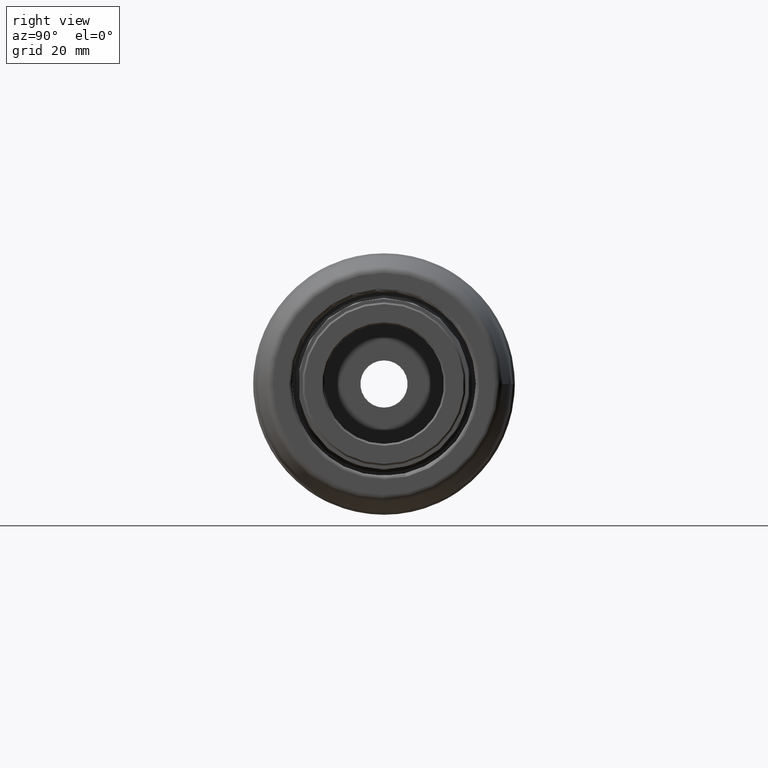
[diagram: clean part render]
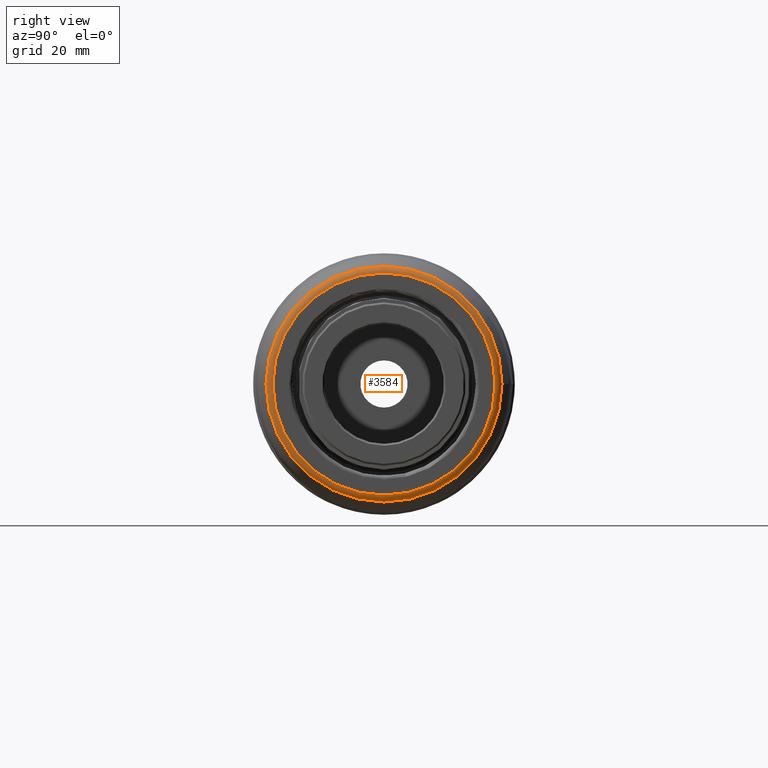
[diagram: same view with one face highlighted and labeled with its STEP entity id]
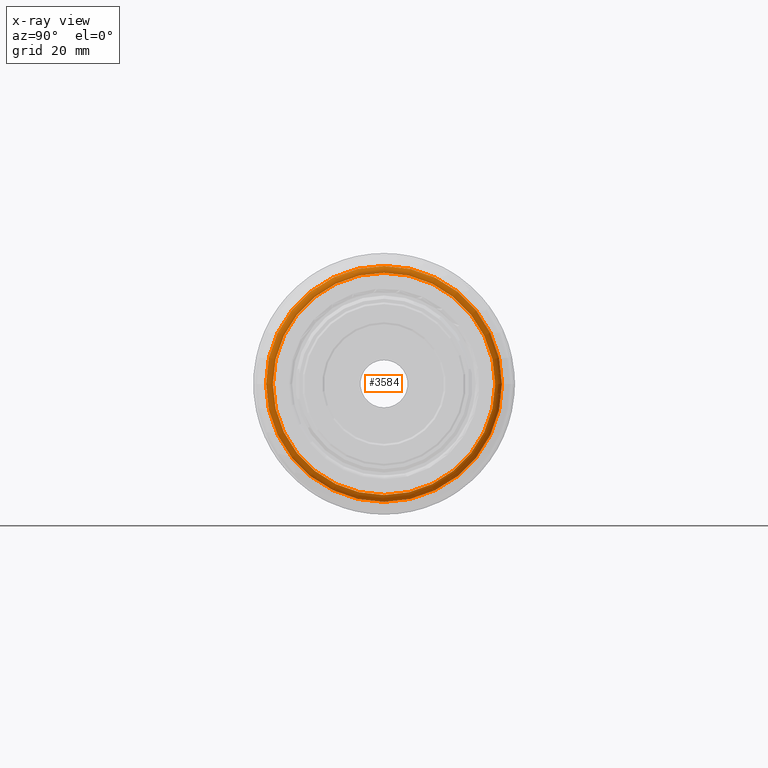
[diagram: x-ray of the same camera — body ghosted, the highlighted face saturated]
A machine part, right view. The second image highlights one B-rep face of the part: STEP entity #3584.
The next image is the same camera in x-ray: the body ghosted, the highlighted face saturated — about 0% of this face is hidden behind the body in this view.
In plain terms, the highlighted toroidal blend (fillet) surface has major radius 30.5996 mm and minor (blend) radius 2 mm.
Its self-contained STEP definition (entity closure, byte-faithful):
#138=TOROIDAL_SURFACE('',#4026,30.5995849235806,2.);
#477=FACE_OUTER_BOUND('',#688,.T.);
#688=EDGE_LOOP('',(#3294,#3295,#3296,#3297,#3298,#3299,#3300));
#1371=CIRCLE('',#4020,32.4789701651524);
#1372=CIRCLE('',#4021,32.4789701651524);
#1373=CIRCLE('',#4022,32.4789701651524);
#1376=CIRCLE('',#4027,30.5995849235806);
#1377=CIRCLE('',#4028,2.);
#1378=CIRCLE('',#4029,30.5995849235806);
#1738=VERTEX_POINT('',#7334);
#1739=VERTEX_POINT('',#7335);
#1740=VERTEX_POINT('',#7337);
#1743=VERTEX_POINT('',#7348);
#1744=VERTEX_POINT('',#7349);
#2263=EDGE_CURVE('',#1738,#1739,#1371,.T.);
#2264=EDGE_CURVE('',#1740,#1738,#1372,.T.);
#2266=EDGE_CURVE('',#1739,#1740,#1373,.T.);
#2270=EDGE_CURVE('',#1743,#1744,#1376,.T.);
#2271=EDGE_CURVE('',#1744,#1739,#1377,.T.);
#2272=EDGE_CURVE('',#1744,#1743,#1378,.T.);
#3294=ORIENTED_EDGE('',*,*,#2270,.T.);
#3295=ORIENTED_EDGE('',*,*,#2271,.T.);
#3296=ORIENTED_EDGE('',*,*,#2266,.T.);
#3297=ORIENTED_EDGE('',*,*,#2264,.T.);
#3298=ORIENTED_EDGE('',*,*,#2263,.T.);
#3299=ORIENTED_EDGE('',*,*,#2271,.F.);
#3300=ORIENTED_EDGE('',*,*,#2272,.T.);
#3584=ADVANCED_FACE('',(#477),#138,.T.);
#4020=AXIS2_PLACEMENT_3D('',#7336,#5003,#5004);
#4021=AXIS2_PLACEMENT_3D('',#7338,#5005,#5006);
#4022=AXIS2_PLACEMENT_3D('',#7340,#5008,#5009);
#4026=AXIS2_PLACEMENT_3D('',#7347,#5017,#5018);
#4027=AXIS2_PLACEMENT_3D('',#7350,#5019,#5020);
#4028=AXIS2_PLACEMENT_3D('',#7351,#5021,#5022);
#4029=AXIS2_PLACEMENT_3D('',#7352,#5023,#5024);
#5003=DIRECTION('center_axis',(1.,0.,0.));
#5004=DIRECTION('ref_axis',(0.,-1.,3.06161699786838E-17));
#5005=DIRECTION('center_axis',(1.,0.,0.));
#5006=DIRECTION('ref_axis',(0.,-1.,3.06161699786838E-17));
#5008=DIRECTION('center_axis',(1.,0.,0.));
#5009=DIRECTION('ref_axis',(0.,-1.,3.06161699786838E-17));
#5017=DIRECTION('center_axis',(1.,0.,0.));
#5018=DIRECTION('ref_axis',(0.,0.,-1.));
#5019=DIRECTION('center_axis',(-1.,0.,0.));
#5020=DIRECTION('ref_axis',(0.,-1.,1.83697019872103E-16));
#5021=DIRECTION('center_axis',(0.,-1.,-1.22464679914735E-16));
#5022=DIRECTION('ref_axis',(0.,-1.22464679914735E-16,1.));
#5023=DIRECTION('center_axis',(-1.,0.,0.));
#5024=DIRECTION('ref_axis',(0.,-1.,1.83697019872103E-16));
#7334=CARTESIAN_POINT('',(59.6840402866513,32.4789701651524,-1.98876334261781E-15));
#7335=CARTESIAN_POINT('',(59.6840402866513,-3.97752668523563E-15,32.4789701651524));
#7336=CARTESIAN_POINT('Origin',(59.6840402866513,0.,-4.97190835654453E-15));
#7337=CARTESIAN_POINT('',(59.6840402866513,-32.4789701651524,-3.97752668523563E-15));
#7338=CARTESIAN_POINT('Origin',(59.6840402866513,0.,-4.97190835654453E-15));
#7340=CARTESIAN_POINT('Origin',(59.6840402866513,0.,-4.97190835654453E-15));
#7347=CARTESIAN_POINT('Origin',(59.,0.,0.));
#7348=CARTESIAN_POINT('',(61.,30.5995849235806,-9.36842093297514E-15));
#7349=CARTESIAN_POINT('',(61.,-3.74736837319006E-15,30.5995849235806));
#7350=CARTESIAN_POINT('Origin',(61.,0.,0.));
#7351=CARTESIAN_POINT('Origin',(59.,-3.74736837319006E-15,30.5995849235806));
#7352=CARTESIAN_POINT('Origin',(61.,0.,0.));